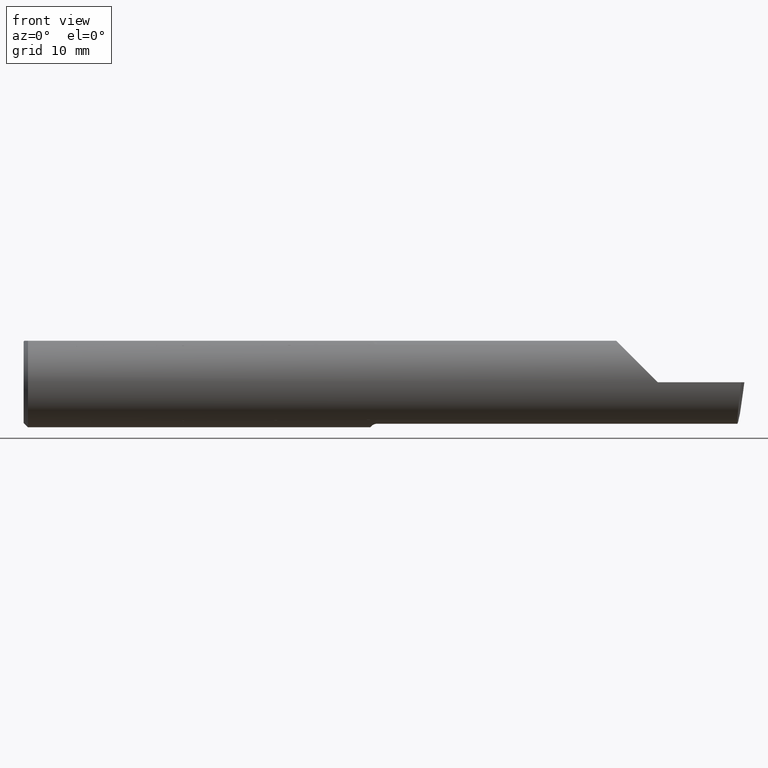
[diagram: clean part render]
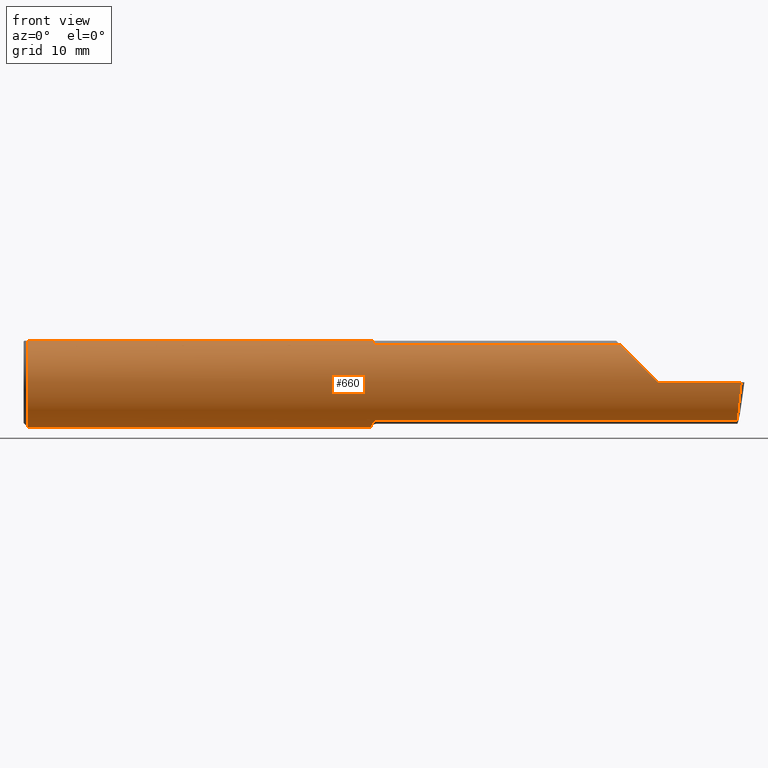
[diagram: same view with one face highlighted and labeled with its STEP entity id]
A machine part, front view. The second image highlights one B-rep face of the part: STEP entity #660.
In plain terms, the highlighted cylindrical surface (partial cylindrical patch) has radius 3.9649 mm, axis along (-1, -0, -0).
Its self-contained STEP definition (entity closure, byte-faithful):
#3 = VERTEX_POINT ( 'NONE', #421 ) ;
#4 = CARTESIAN_POINT ( 'NONE',  ( 2.146287522244402446, -0.1560999999999999888, 0.05371247775559774562 ) ) ;
#5 = CARTESIAN_POINT ( 'NONE',  ( 1.225000000000000089, -0.08569999999999958207, 0.1304711462354801732 ) ) ;
#7 = ORIENTED_EDGE ( 'NONE', *, *, #406, .T. ) ;
#14 = CARTESIAN_POINT ( 'NONE',  ( 2.069528853764521781, -0.08570000000000160822, 0.1304711462354791740 ) ) ;
#18 = CARTESIAN_POINT ( 'NONE',  ( 0.01499999999999972536, -0.06001999666777736026, 0.1440999999999999504 ) ) ;
#19 = VERTEX_POINT ( 'NONE', #198 ) ;
#20 = AXIS2_PLACEMENT_3D ( 'NONE', #491, #709, #214 ) ;
#24 = CARTESIAN_POINT ( 'NONE',  ( 1.200071990262526755, 0.05564801034740574776, -0.1460745134073546669 ) ) ;
#30 = CARTESIAN_POINT ( 'NONE',  ( 1.207963511987595773, -0.04781653154421319080, -0.1490354188631307919 ) ) ;
#38 = VERTEX_POINT ( 'NONE', #593 ) ;
#45 = CIRCLE ( 'NONE', #20, 0.1560999999999999888 ) ;
#46 = B_SPLINE_CURVE_WITH_KNOTS ( 'NONE', 3,
 ( #140, #236, #292, #671, #361, #132, #180, #409, #128, #5 ),
 .UNSPECIFIED., .F., .F.,
 ( 4, 2, 2, 2, 4 ),
 ( 5.292347910093785045E-07, 0.0004247077115782297413, 0.0006367969499718419872, 0.0007428415691686514983, 0.0008488861883654609010 ),
 .UNSPECIFIED. ) ;
#57 = CIRCLE ( 'NONE', #256, 0.1560999999999999888 ) ;
#67 = VERTEX_POINT ( 'NONE', #696 ) ;
#73 = CARTESIAN_POINT ( 'NONE',  ( 2.475676552398977215, -0.08569999999999944329, -0.1304711462354803120 ) ) ;
#83 = B_SPLINE_CURVE_WITH_KNOTS ( 'NONE', 3,
 ( #456, #623, #404, #135 ),
 .UNSPECIFIED., .F., .F.,
 ( 4, 4 ),
 ( 0.002773882331925834992, 0.003069179409190571188 ),
 .UNSPECIFIED. ) ;
#84 = CARTESIAN_POINT ( 'NONE',  ( 1.211707069840786355, -0.06372296352516945706, -0.1426158673175147718 ) ) ;
#90 = CARTESIAN_POINT ( 'NONE',  ( 1.223482932671287493, -0.08569999999999979023, -0.1304711462354801177 ) ) ;
#92 = EDGE_CURVE ( 'NONE', #220, #633, #565, .T. ) ;
#95 = CARTESIAN_POINT ( 'NONE',  ( 1.201388441185261557, 0.01585133794323622530, -0.1555099485709025842 ) ) ;
#97 = DIRECTION ( 'NONE',  ( 0.000000000000000000, 0.000000000000000000, 1.000000000000000000 ) ) ;
#110 = ORIENTED_EDGE ( 'NONE', *, *, #352, .F. ) ;
#117 = LINE ( 'NONE', #286, #460 ) ;
#122 = EDGE_CURVE ( 'NONE', #633, #67, #45, .T. ) ;
#128 = CARTESIAN_POINT ( 'NONE',  ( 1.223558490372086860, -0.08570000000287507358, 0.1304711462335917393 ) ) ;
#132 = CARTESIAN_POINT ( 'NONE',  ( 1.219508261956889550, -0.08224208440130496844, 0.1326837206089795385 ) ) ;
#135 = CARTESIAN_POINT ( 'NONE',  ( 1.200050504025077514, 0.06001999666777729781, 0.1440999999999999504 ) ) ;
#137 = CIRCLE ( 'NONE', #552, 0.1560999999999999888 ) ;
#140 = CARTESIAN_POINT ( 'NONE',  ( 1.210843495424060334, -0.06001999666777306508, 0.1440999999999999504 ) ) ;
#144 = CARTESIAN_POINT ( 'NONE',  ( 2.500000000000000000, 0.06001999666777736719, 0.1440999999999999504 ) ) ;
#147 = CARTESIAN_POINT ( 'NONE',  ( 1.225000000000000089, -0.08569999999999974860, -0.1304711462354800899 ) ) ;
#151 = CARTESIAN_POINT ( 'NONE',  ( 2.056000000000000050, -0.1560999999999999888, 3.826894855694925850E-18 ) ) ;
#154 = CARTESIAN_POINT ( 'NONE',  ( 1.200649978979528187, 0.03207608857981686379, -0.1529893249888212847 ) ) ;
#156 = LINE ( 'NONE', #151, #644 ) ;
#163 = ORIENTED_EDGE ( 'NONE', *, *, #549, .T. ) ;
#165 = B_SPLINE_CURVE_WITH_KNOTS ( 'NONE', 3,
 ( #147, #90, #642, #259, #430, #535, #543, #386, #84, #30, #589, #530 ),
 .UNSPECIFIED., .F., .F.,
 ( 4, 2, 2, 2, 2, 4 ),
 ( 1.966861314596262729E-07, 0.0001139043861859081211, 0.0002276120862403566006, 0.0004550274863492592518, 0.0009098582865670681863, 0.001819519887002688007 ),
 .UNSPECIFIED. ) ;
#166 = EDGE_CURVE ( 'NONE', #19, #446, #117, .T. ) ;
#174 = VERTEX_POINT ( 'NONE', #500 ) ;
#180 = CARTESIAN_POINT ( 'NONE',  ( 1.220308733175471838, -0.08325729668116155224, 0.1320471792325035865 ) ) ;
#189 = CARTESIAN_POINT ( 'NONE',  ( 2.069528853764521781, -0.08570000000000160822, 0.1304711462354791740 ) ) ;
#191 = CARTESIAN_POINT ( 'NONE',  ( 0.01499999999999970281, 0.000000000000000000, 0.000000000000000000 ) ) ;
#196 = CARTESIAN_POINT ( 'NONE',  ( 2.500000000000000000, -0.06001999666777736719, 0.1440999999999999504 ) ) ;
#198 = CARTESIAN_POINT ( 'NONE',  ( 2.475676552398977215, -0.08569999999999944329, -0.1304711462354803120 ) ) ;
#200 = DIRECTION ( 'NONE',  ( -1.000000000000000000, -0.000000000000000000, -0.000000000000000000 ) ) ;
#214 = DIRECTION ( 'NONE',  ( 0.000000000000000000, 0.000000000000000000, -1.000000000000000000 ) ) ;
#220 = VERTEX_POINT ( 'NONE', #447 ) ;
#223 = DIRECTION ( 'NONE',  ( 0.000000000000000000, 0.000000000000000000, -1.000000000000000000 ) ) ;
#233 = ORIENTED_EDGE ( 'NONE', *, *, #122, .F. ) ;
#236 = CARTESIAN_POINT ( 'NONE',  ( 1.212083001804619586, -0.06507129184707169389, 0.1419960532975073353 ) ) ;
#246 = DIRECTION ( 'NONE',  ( 1.000000000000000000, -0.000000000000000000, -0.000000000000000000 ) ) ;
#248 = ORIENTED_EDGE ( 'NONE', *, *, #342, .F. ) ;
#252 = EDGE_CURVE ( 'NONE', #403, #441, #137, .T. ) ;
#253 = CARTESIAN_POINT ( 'NONE',  ( 1.210843495424060334, -0.06001999666777306508, 0.1440999999999999504 ) ) ;
#256 = AXIS2_PLACEMENT_3D ( 'NONE', #191, #246, #525 ) ;
#259 = CARTESIAN_POINT ( 'NONE',  ( 1.220128093538963121, -0.08306175160949978709, -0.1321708551218363503 ) ) ;
#260 = LINE ( 'NONE', #144, #278 ) ;
#268 = VECTOR ( 'NONE', #630, 39.37007874015748143 ) ;
#269 = CARTESIAN_POINT ( 'NONE',  ( 1.199999999999999956, 0.07070000000000016549, -0.1391715488165593539 ) ) ;
#278 = VECTOR ( 'NONE', #695, 39.37007874015748143 ) ;
#286 = CARTESIAN_POINT ( 'NONE',  ( 1.722499999999999698, -0.08569999999999944329, -0.1304711462354803120 ) ) ;
#290 = ORIENTED_EDGE ( 'NONE', *, *, #92, .F. ) ;
#292 = CARTESIAN_POINT ( 'NONE',  ( 1.213486186723762739, -0.06993940022577692373, 0.1396536156489261715 ) ) ;
#301 = VERTEX_POINT ( 'NONE', #681 ) ;
#314 = CYLINDRICAL_SURFACE ( 'NONE', #651, 0.1560999999999999888 ) ;
#316 = CARTESIAN_POINT ( 'NONE',  ( 1.203902027940762620, -0.01695323297373857799, -0.1553906460178914595 ) ) ;
#317 =( BOUNDED_CURVE ( )  B_SPLINE_CURVE ( 3, ( #634, #4, #411, #14 ),
 .UNSPECIFIED., .F., .T. ) 
 B_SPLINE_CURVE_WITH_KNOTS ( ( 4, 4 ),
 ( 4.712388980384689674, 5.702009535608121737 ),
 .UNSPECIFIED. ) 
 CURVE ( )  GEOMETRIC_REPRESENTATION_ITEM ( )  RATIONAL_B_SPLINE_CURVE ( ( 1.000000000000000000, 0.9200392120919993477, 0.9200392120919993477, 1.000000000000000000 ) ) 
 REPRESENTATION_ITEM ( '' )  );
#318 = CARTESIAN_POINT ( 'NONE',  ( 1.203136333117606815, -0.008834603825782230690, -0.1560646118524871839 ) ) ;
#323 = CARTESIAN_POINT ( 'NONE',  ( 1.200397517577731721, 0.04003554869482266187, -0.1511013546051950540 ) ) ;
#324 = EDGE_CURVE ( 'NONE', #67, #628, #83, .T. ) ;
#329 = ORIENTED_EDGE ( 'NONE', *, *, #704, .F. ) ;
#342 = EDGE_CURVE ( 'NONE', #174, #620, #686, .T. ) ;
#352 = EDGE_CURVE ( 'NONE', #405, #174, #46, .T. ) ;
#355 = LINE ( 'NONE', #196, #268 ) ;
#361 = CARTESIAN_POINT ( 'NONE',  ( 1.217376702052392012, -0.07908290169519989476, 0.1346075232099596397 ) ) ;
#367 = CARTESIAN_POINT ( 'NONE',  ( 2.500000000000000000, 0.000000000000000000, 0.000000000000000000 ) ) ;
#370 = CARTESIAN_POINT ( 'NONE',  ( 1.204862523376302841, -0.02499999999999998057, -0.1540850739039962836 ) ) ;
#376 = DIRECTION ( 'NONE',  ( 1.000000000000000000, -0.000000000000000000, -0.000000000000000000 ) ) ;
#378 = CARTESIAN_POINT ( 'NONE',  ( 1.201879363605551587, 0.007536363012658810548, -0.1561326888578026817 ) ) ;
#379 = FACE_OUTER_BOUND ( 'NONE', #658, .T. ) ;
#383 = ORIENTED_EDGE ( 'NONE', *, *, #488, .T. ) ;
#386 = CARTESIAN_POINT ( 'NONE',  ( 1.213126895908767544, -0.06887538526310840736, -0.1401954838979875828 ) ) ;
#393 =( BOUNDED_CURVE ( )  B_SPLINE_CURVE ( 3, ( #73, #577, #676, #680 ),
 .UNSPECIFIED., .F., .F. ) 
 B_SPLINE_CURVE_WITH_KNOTS ( ( 4, 4 ),
 ( 0.3062340898531133448, 1.295854645076560674 ),
 .UNSPECIFIED. ) 
 CURVE ( )  GEOMETRIC_REPRESENTATION_ITEM ( )  RATIONAL_B_SPLINE_CURVE ( ( 1.000000000000000000, 0.9200392120919970163, 0.9200392120919970163, 1.000000000000000000 ) ) 
 REPRESENTATION_ITEM ( '' )  );
#403 = VERTEX_POINT ( 'NONE', #18 ) ;
#404 = CARTESIAN_POINT ( 'NONE',  ( 1.200016018626790970, 0.06364538733738608900, 0.1425899657466628001 ) ) ;
#405 = VERTEX_POINT ( 'NONE', #253 ) ;
#406 = EDGE_CURVE ( 'NONE', #38, #628, #260, .T. ) ;
#409 = CARTESIAN_POINT ( 'NONE',  ( 1.222282960142827779, -0.08496306084894000854, 0.1309561502377615816 ) ) ;
#411 = CARTESIAN_POINT ( 'NONE',  ( 2.099017382551547684, -0.1305938407426056047, 0.1009826174484526745 ) ) ;
#421 = CARTESIAN_POINT ( 'NONE',  ( 2.199999999999999289, -0.1560999999999999888, 3.826894855694925850E-18 ) ) ;
#430 = CARTESIAN_POINT ( 'NONE',  ( 1.219310887745669314, -0.08198244806375869220, -0.1328448627315467756 ) ) ;
#441 = VERTEX_POINT ( 'NONE', #532 ) ;
#446 = VERTEX_POINT ( 'NONE', #474 ) ;
#447 = CARTESIAN_POINT ( 'NONE',  ( 1.204862523376302841, -0.02499999999999998057, -0.1540850739039962836 ) ) ;
#448 = ORIENTED_EDGE ( 'NONE', *, *, #714, .F. ) ;
#456 = CARTESIAN_POINT ( 'NONE',  ( 1.199999999999999956, 0.07070000000000016549, 0.1391715488165593539 ) ) ;
#460 = VECTOR ( 'NONE', #492, 39.37007874015748143 ) ;
#474 = CARTESIAN_POINT ( 'NONE',  ( 1.225000000000000089, -0.08569999999999974860, -0.1304711462354800899 ) ) ;
#488 = EDGE_CURVE ( 'NONE', #3, #620, #317, .T. ) ;
#490 = ORIENTED_EDGE ( 'NONE', *, *, #526, .T. ) ;
#491 = CARTESIAN_POINT ( 'NONE',  ( 1.199999999999999956, 0.000000000000000000, 0.000000000000000000 ) ) ;
#492 = DIRECTION ( 'NONE',  ( -1.000000000000000000, -0.000000000000000000, -0.000000000000000000 ) ) ;
#496 = CARTESIAN_POINT ( 'NONE',  ( 0.01499999999999970281, 0.000000000000000000, 0.000000000000000000 ) ) ;
#500 = CARTESIAN_POINT ( 'NONE',  ( 1.225000000000000089, -0.08569999999999958207, 0.1304711462354801732 ) ) ;
#518 = CARTESIAN_POINT ( 'NONE',  ( 1.199999999999999956, 0.07070000000000016549, -0.1391715488165593539 ) ) ;
#522 = EDGE_CURVE ( 'NONE', #441, #38, #57, .T. ) ;
#525 = DIRECTION ( 'NONE',  ( 0.000000000000000000, 0.000000000000000000, -1.000000000000000000 ) ) ;
#526 = EDGE_CURVE ( 'NONE', #19, #301, #393, .T. ) ;
#530 = CARTESIAN_POINT ( 'NONE',  ( 1.204862523376302841, -0.02499999999999998057, -0.1540850739039962836 ) ) ;
#532 = CARTESIAN_POINT ( 'NONE',  ( 0.01499999999999970281, 0.000000000000000000, -0.1560999999999999888 ) ) ;
#535 = CARTESIAN_POINT ( 'NONE',  ( 1.217151728812736033, -0.07866717671367141895, -0.1348531152278716616 ) ) ;
#543 = CARTESIAN_POINT ( 'NONE',  ( 1.216062054560796302, -0.07627963852229883990, -0.1362221433799973291 ) ) ;
#545 = ORIENTED_EDGE ( 'NONE', *, *, #522, .T. ) ;
#549 = EDGE_CURVE ( 'NONE', #405, #403, #355, .T. ) ;
#552 = AXIS2_PLACEMENT_3D ( 'NONE', #496, #717, #223 ) ;
#565 = B_SPLINE_CURVE_WITH_KNOTS ( 'NONE', 3,
 ( #370, #316, #318, #378, #95, #154, #323, #24, #583, #269 ),
 .UNSPECIFIED., .F., .F.,
 ( 4, 2, 2, 2, 4 ),
 ( 0.001819519887002688007, 0.002458246943215885039, 0.003096973999429081855, 0.003735701055642279104, 0.004374428111855475920 ),
 .UNSPECIFIED. ) ;
#571 = CARTESIAN_POINT ( 'NONE',  ( 1.200050504025077514, 0.06001999666777729781, 0.1440999999999999504 ) ) ;
#577 = CARTESIAN_POINT ( 'NONE',  ( 2.477743596163800799, -0.1305938407426047998, -0.1009826174484541872 ) ) ;
#583 = CARTESIAN_POINT ( 'NONE',  ( 1.200000000000000400, 0.06336441380915111554, -0.1428980715728493667 ) ) ;
#586 = VECTOR ( 'NONE', #632, 39.37007874015748143 ) ;
#589 = CARTESIAN_POINT ( 'NONE',  ( 1.206230440715337693, -0.03646003586389204992, -0.1522257056385417084 ) ) ;
#593 = CARTESIAN_POINT ( 'NONE',  ( 0.01499999999999970281, 0.06001999666777736719, 0.1440999999999999504 ) ) ;
#611 = ORIENTED_EDGE ( 'NONE', *, *, #166, .F. ) ;
#614 = CARTESIAN_POINT ( 'NONE',  ( 1.722499999999999698, -0.08569999999999944329, 0.1304711462354803120 ) ) ;
#620 = VERTEX_POINT ( 'NONE', #189 ) ;
#623 = CARTESIAN_POINT ( 'NONE',  ( 1.199999999999999956, 0.06720526509779117807, 0.1409468955716051963 ) ) ;
#628 = VERTEX_POINT ( 'NONE', #571 ) ;
#630 = DIRECTION ( 'NONE',  ( -1.000000000000000000, -0.000000000000000000, -0.000000000000000000 ) ) ;
#632 = DIRECTION ( 'NONE',  ( 1.000000000000000000, 0.000000000000000000, 0.000000000000000000 ) ) ;
#633 = VERTEX_POINT ( 'NONE', #518 ) ;
#634 = CARTESIAN_POINT ( 'NONE',  ( 2.199999999999999289, -0.1560999999999999888, 3.826894855694925850E-18 ) ) ;
#642 = CARTESIAN_POINT ( 'NONE',  ( 1.222162220462617688, -0.08489276752862412456, -0.1310023188550747675 ) ) ;
#644 = VECTOR ( 'NONE', #376, 39.37007874015748143 ) ;
#651 = AXIS2_PLACEMENT_3D ( 'NONE', #367, #200, #97 ) ;
#658 = EDGE_LOOP ( 'NONE', ( #611, #490, #329, #383, #248, #110, #163, #718, #545, #7, #706, #233, #290, #448 ) ) ;
#660 = ADVANCED_FACE ( 'NONE', ( #379 ), #314, .T. ) ;
#671 = CARTESIAN_POINT ( 'NONE',  ( 1.216324726609742779, -0.07684337455390519156, 0.1359013108991524443 ) ) ;
#676 = CARTESIAN_POINT ( 'NONE',  ( 2.482667168175672678, -0.1560999999999999888, -0.05371247775559866849 ) ) ;
#680 = CARTESIAN_POINT ( 'NONE',  ( 2.489266190342419360, -0.1561000000000000165, 3.826894855694925850E-18 ) ) ;
#681 = CARTESIAN_POINT ( 'NONE',  ( 2.489266190342419360, -0.1561000000000000165, 3.826894855694925850E-18 ) ) ;
#686 = LINE ( 'NONE', #614, #586 ) ;
#695 = DIRECTION ( 'NONE',  ( 1.000000000000000000, 0.000000000000000000, 0.000000000000000000 ) ) ;
#696 = CARTESIAN_POINT ( 'NONE',  ( 1.199999999999999956, 0.07070000000000016549, 0.1391715488165593539 ) ) ;
#704 = EDGE_CURVE ( 'NONE', #3, #301, #156, .T. ) ;
#706 = ORIENTED_EDGE ( 'NONE', *, *, #324, .F. ) ;
#709 = DIRECTION ( 'NONE',  ( 1.000000000000000000, 0.000000000000000000, 0.000000000000000000 ) ) ;
#714 = EDGE_CURVE ( 'NONE', #446, #220, #165, .T. ) ;
#717 = DIRECTION ( 'NONE',  ( 1.000000000000000000, -0.000000000000000000, -0.000000000000000000 ) ) ;
#718 = ORIENTED_EDGE ( 'NONE', *, *, #252, .T. ) ;